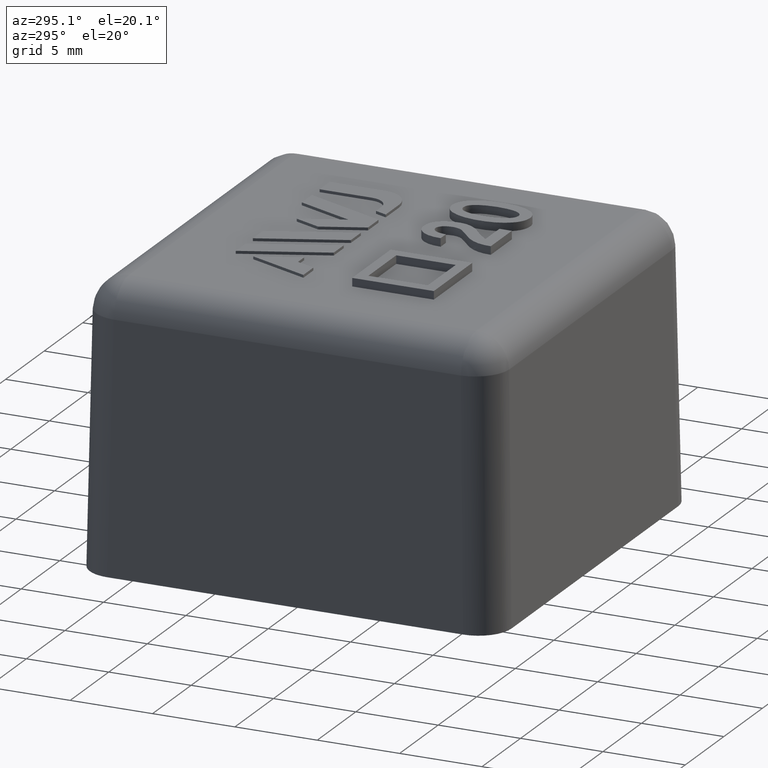
[diagram: clean part render]
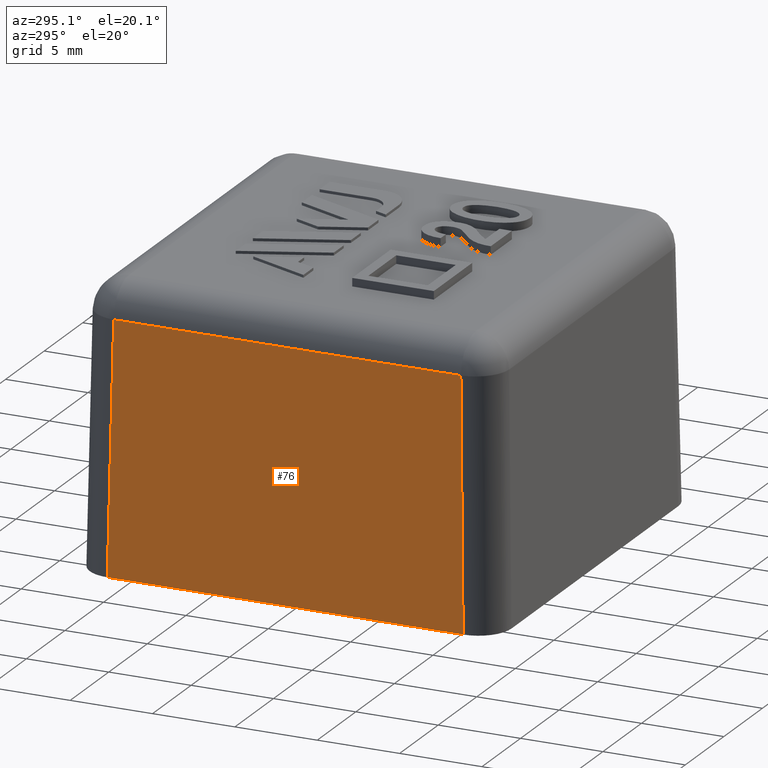
[diagram: same view with one face highlighted and labeled with its STEP entity id]
A machine part, auxiliary view. The second image highlights one B-rep face of the part: STEP entity #76.
In plain terms, the highlighted planar face has unit normal (-0.9998, 0, 0.0175).
Its self-contained STEP definition (entity closure, byte-faithful):
#76 = ADVANCED_FACE( '', ( #163 ), #164, .T. );
#163 = FACE_OUTER_BOUND( '', #330, .T. );
#164 = PLANE( '', #331 );
#330 = EDGE_LOOP( '', ( #537, #538, #539, #540 ) );
#331 = AXIS2_PLACEMENT_3D( '', #541, #542, #543 );
#537 = ORIENTED_EDGE( '', *, *, #1173, .T. );
#538 = ORIENTED_EDGE( '', *, *, #1174, .T. );
#539 = ORIENTED_EDGE( '', *, *, #1175, .T. );
#540 = ORIENTED_EDGE( '', *, *, #1176, .T. );
#541 = CARTESIAN_POINT( '', ( -12.8000000000000, -12.8000000000000, 0.000000000000000 ) );
#542 = DIRECTION( '', ( -0.999847695156391, 0.000000000000000, 0.0174524064372835 ) );
#543 = DIRECTION( '', ( 0.0174524064372835, 0.000000000000000, 0.999847695156391 ) );
#1173 = EDGE_CURVE( '', #1394, #1395, #1396, .T. );
#1174 = EDGE_CURVE( '', #1395, #1397, #1398, .F. );
#1175 = EDGE_CURVE( '', #1397, #1399, #1400, .F. );
#1176 = EDGE_CURVE( '', #1399, #1394, #1401, .F. );
#1394 = VERTEX_POINT( '', #1774 );
#1395 = VERTEX_POINT( '', #1775 );
#1396 = LINE( '', #1776, #1777 );
#1397 = VERTEX_POINT( '', #1778 );
#1398 = LINE( '', #1779, #1780 );
#1399 = VERTEX_POINT( '', #1781 );
#1400 = LINE( '', #1782, #1783 );
#1401 = LINE( '', #1784, #1785 );
#1774 = CARTESIAN_POINT( '', ( -12.8000000000000, -10.8003046096872, 0.000000000000000 ) );
#1775 = CARTESIAN_POINT( '', ( -12.5375647603017, -10.5378693699889, 15.0349048128746 ) );
#1776 = CARTESIAN_POINT( '', ( -12.8006088947398, -10.8009135044270, -0.0348835562801318 ) );
#1777 = VECTOR( '', #2218, 1000.00000000000 );
#1778 = CARTESIAN_POINT( '', ( -12.5375647603017, 10.5378693699889, 15.0349048128746 ) );
#1779 = CARTESIAN_POINT( '', ( -12.5375647603017, 10.5035685059075, 15.0349048128746 ) );
#1780 = VECTOR( '', #2219, 1000.00000000000 );
#1781 = CARTESIAN_POINT( '', ( -12.8000000000000, 10.8003046096872, 0.000000000000000 ) );
#1782 = CARTESIAN_POINT( '', ( -12.7928138548481, 10.7931184645353, 0.411693980027382 ) );
#1783 = VECTOR( '', #2220, 1000.00000000000 );
#1784 = CARTESIAN_POINT( '', ( -12.8000000000000, -12.8000000000000, 0.000000000000000 ) );
#1785 = VECTOR( '', #2221, 1000.00000000000 );
#2218 = DIRECTION( '', ( 0.0174497491606827, 0.0174497491606827, 0.999695459881887 ) );
#2219 = DIRECTION( '', ( 0.000000000000000, -1.00000000000000, 0.000000000000000 ) );
#2220 = DIRECTION( '', ( 0.0174497491606827, -0.0174497491606827, 0.999695459881887 ) );
#2221 = DIRECTION( '', ( 0.000000000000000, 1.00000000000000, 0.000000000000000 ) );